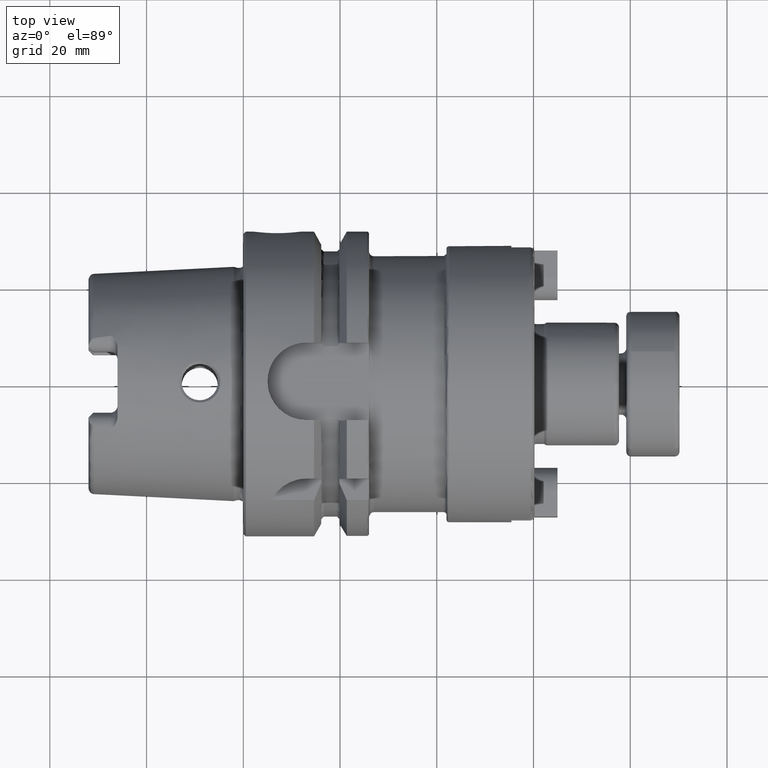
[diagram: clean part render]
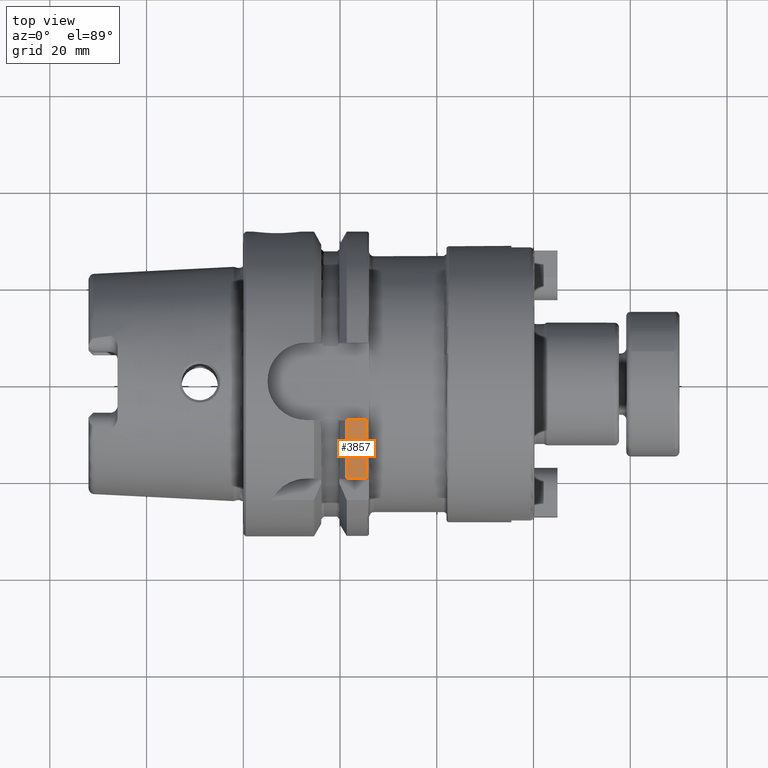
[diagram: same view with one face highlighted and labeled with its STEP entity id]
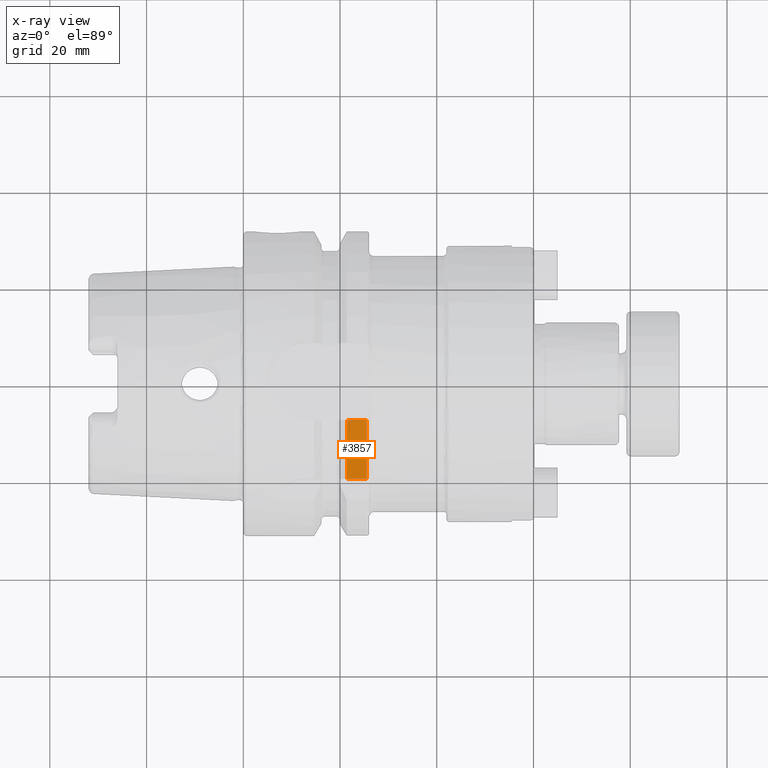
[diagram: x-ray of the same camera — body ghosted, the highlighted face saturated]
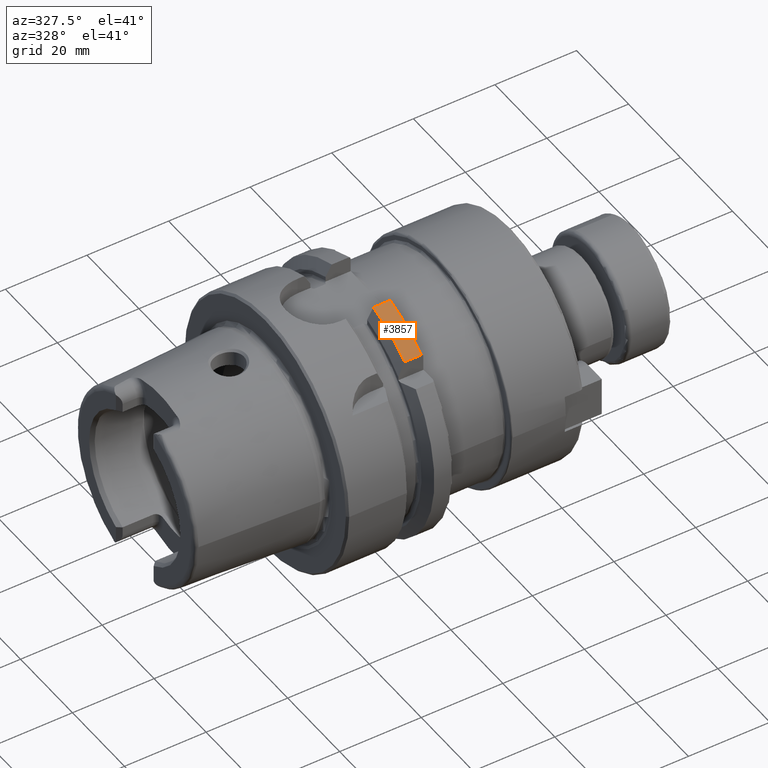
[diagram: same view with one face highlighted and labeled with its STEP entity id]
A machine part, top view. The second image highlights one B-rep face of the part: STEP entity #3857.
The next image is the same camera in x-ray: the body ghosted, the highlighted face saturated — about 0% of this face is hidden behind the body in this view.
A second angle (auxiliary view) of the same face is appended — the face is thin or edge-on in the first view.
In plain terms, the highlighted cylindrical surface (partial cylindrical patch) has radius 31.5 mm, axis along (1, 0, 0).
Its self-contained STEP definition (entity closure, byte-faithful):
#668=CYLINDRICAL_SURFACE('',#4333,31.5);
#797=CIRCLE('',#4332,31.5);
#798=CIRCLE('',#4334,31.5);
#1046=FACE_OUTER_BOUND('',#1257,.T.);
#1257=EDGE_LOOP('',(#3107,#3108,#3109,#3110));
#1477=LINE('',#7124,#1678);
#1485=LINE('',#7188,#1686);
#1678=VECTOR('',#5076,10.);
#1686=VECTOR('',#5118,10.);
#2024=VERTEX_POINT('',#7112);
#2025=VERTEX_POINT('',#7123);
#2039=VERTEX_POINT('',#7180);
#2040=VERTEX_POINT('',#7186);
#2417=EDGE_CURVE('',#2025,#2024,#1477,.T.);
#2437=EDGE_CURVE('',#2039,#2025,#797,.T.);
#2439=EDGE_CURVE('',#2040,#2024,#798,.T.);
#2440=EDGE_CURVE('',#2040,#2039,#1485,.T.);
#3107=ORIENTED_EDGE('',*,*,#2417,.T.);
#3108=ORIENTED_EDGE('',*,*,#2439,.F.);
#3109=ORIENTED_EDGE('',*,*,#2440,.T.);
#3110=ORIENTED_EDGE('',*,*,#2437,.T.);
#3857=ADVANCED_FACE('',(#1046),#668,.T.);
#4332=AXIS2_PLACEMENT_3D('',#7181,#5112,#5113);
#4333=AXIS2_PLACEMENT_3D('',#7185,#5114,#5115);
#4334=AXIS2_PLACEMENT_3D('',#7187,#5116,#5117);
#5076=DIRECTION('',(1.,0.,0.));
#5112=DIRECTION('center_axis',(1.,0.,0.));
#5113=DIRECTION('ref_axis',(0.,0.,-1.));
#5114=DIRECTION('center_axis',(1.,0.,0.));
#5115=DIRECTION('ref_axis',(0.,1.,0.));
#5116=DIRECTION('center_axis',(1.,0.,0.));
#5117=DIRECTION('ref_axis',(0.,0.,-1.));
#5118=DIRECTION('',(-1.,0.,0.));
#7112=CARTESIAN_POINT('',(25.5,-20.,24.3361870472759));
#7123=CARTESIAN_POINT('',(21.3774990747593,-20.,24.3361870472759));
#7124=CARTESIAN_POINT('',(23.4387495373797,-20.,24.3361870472759));
#7180=CARTESIAN_POINT('',(21.3774990747593,-8.,30.4671954731642));
#7181=CARTESIAN_POINT('Origin',(21.3774990747593,0.,0.));
#7185=CARTESIAN_POINT('Origin',(23.4387495373797,0.,0.));
#7186=CARTESIAN_POINT('',(25.5,-8.,30.4671954731643));
#7187=CARTESIAN_POINT('Origin',(25.5,0.,0.));
#7188=CARTESIAN_POINT('',(23.4387495373797,-8.,30.4671954731642));